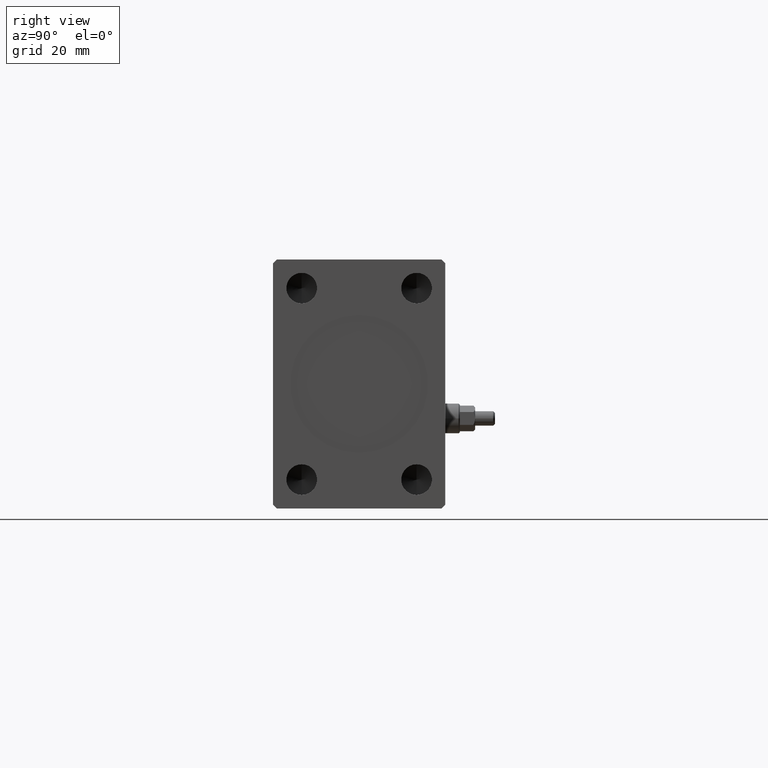
[diagram: clean part render]
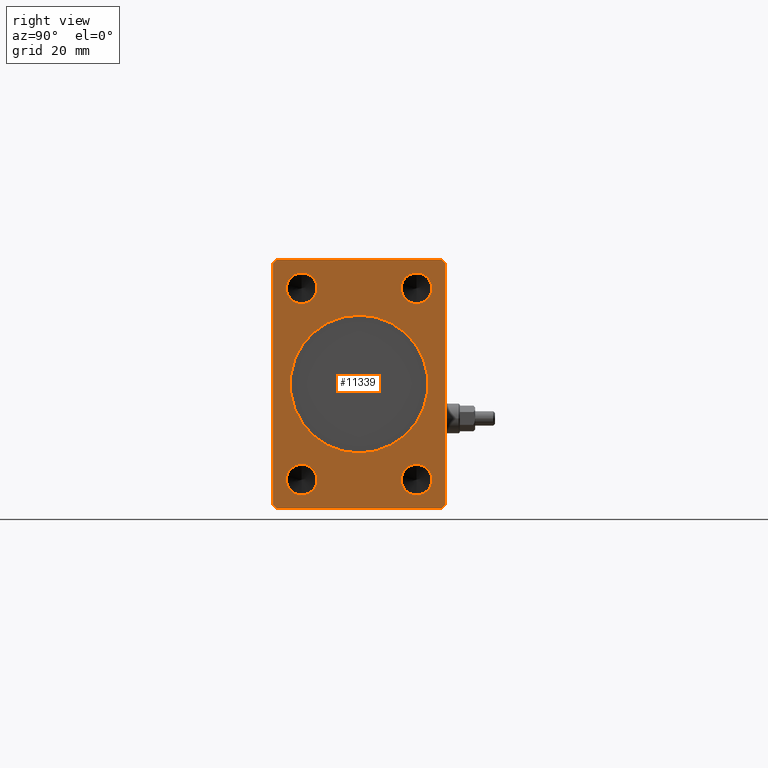
[diagram: same view with one face highlighted and labeled with its STEP entity id]
A machine part, right view. The second image highlights one B-rep face of the part: STEP entity #11339.
In plain terms, the highlighted planar face has unit normal (1, 0, 0).
Its self-contained STEP definition (entity closure, byte-faithful):
#311 = VERTEX_POINT ( 'NONE', #3911 ) ;
#345 = CARTESIAN_POINT ( 'NONE',  ( 163.0000000000000000, -22.50000000000001421, -31.50000000000000711 ) ) ;
#720 = EDGE_CURVE ( 'NONE', #18396, #18338, #2459, .T. ) ;
#809 = ORIENTED_EDGE ( 'NONE', *, *, #5262, .T. ) ;
#1256 = DIRECTION ( 'NONE',  ( 0.000000000000000000, 0.000000000000000000, -1.000000000000000000 ) ) ;
#1484 = LINE ( 'NONE', #4905, #3327 ) ;
#1647 = ORIENTED_EDGE ( 'NONE', *, *, #37509, .F. ) ;
#1685 = CARTESIAN_POINT ( 'NONE',  ( 163.0000000000000000, 0.000000000000000000, -18.00000000000000000 ) ) ;
#1808 = EDGE_CURVE ( 'NONE', #18338, #27748, #1484, .T. ) ;
#2355 = DIRECTION ( 'NONE',  ( 1.000000000000000000, 0.000000000000000000, 0.000000000000000000 ) ) ;
#2459 = LINE ( 'NONE', #12748, #36870 ) ;
#2478 = CARTESIAN_POINT ( 'NONE',  ( 163.0000000000000000, 21.49999999999999645, 32.50000000000000000 ) ) ;
#2627 = EDGE_CURVE ( 'NONE', #28308, #12404, #22952, .T. ) ;
#2684 = EDGE_CURVE ( 'NONE', #30100, #12191, #31007, .T. ) ;
#2991 = VECTOR ( 'NONE', #29241, 1000.000000000000114 ) ;
#3071 = FACE_BOUND ( 'NONE', #22101, .T. ) ;
#3327 = VECTOR ( 'NONE', #32790, 1000.000000000000114 ) ;
#3911 = CARTESIAN_POINT ( 'NONE',  ( 163.0000000000000000, -14.99999999999999645, 28.99999999999999645 ) ) ;
#4073 = CARTESIAN_POINT ( 'NONE',  ( 163.0000000000000000, 15.00000000000000355, -24.99999999999999289 ) ) ;
#4079 = AXIS2_PLACEMENT_3D ( 'NONE', #9475, #19769, #44432 ) ;
#4905 = CARTESIAN_POINT ( 'NONE',  ( 163.0000000000000000, 21.49999999999999645, -32.50000000000000000 ) ) ;
#4943 = CARTESIAN_POINT ( 'NONE',  ( 163.0000000000000000, -14.99999999999999645, -20.99999999999999645 ) ) ;
#5188 = ORIENTED_EDGE ( 'NONE', *, *, #27047, .T. ) ;
#5262 = EDGE_CURVE ( 'NONE', #15610, #10272, #22766, .T. ) ;
#5651 = DIRECTION ( 'NONE',  ( 0.000000000000000000, -0.7071067811865474617, -0.7071067811865474617 ) ) ;
#5994 = CARTESIAN_POINT ( 'NONE',  ( 163.0000000000000000, 15.00000000000000355, -28.99999999999999289 ) ) ;
#6243 = CARTESIAN_POINT ( 'NONE',  ( 163.0000000000000000, -14.99999999999999645, 20.99999999999999645 ) ) ;
#6437 = CIRCLE ( 'NONE', #44378, 4.000000000000000000 ) ;
#6553 = CARTESIAN_POINT ( 'NONE',  ( 163.0000000000000000, -14.99999999999999645, -24.99999999999999645 ) ) ;
#6573 = CARTESIAN_POINT ( 'NONE',  ( 163.0000000000000000, -14.99999999999999645, -24.99999999999999645 ) ) ;
#6651 = ORIENTED_EDGE ( 'NONE', *, *, #9985, .F. ) ;
#6793 = CARTESIAN_POINT ( 'NONE',  ( 163.0000000000000000, 2.204364238465235428E-15, 18.00000000000000000 ) ) ;
#6949 = FACE_BOUND ( 'NONE', #37080, .T. ) ;
#8785 = DIRECTION ( 'NONE',  ( 0.000000000000000000, 0.000000000000000000, 1.000000000000000000 ) ) ;
#8895 = LINE ( 'NONE', #33571, #25656 ) ;
#9094 = CIRCLE ( 'NONE', #34655, 4.000000000000000000 ) ;
#9317 = VECTOR ( 'NONE', #5651, 1000.000000000000114 ) ;
#9450 = AXIS2_PLACEMENT_3D ( 'NONE', #22656, #25181, #18330 ) ;
#9475 = CARTESIAN_POINT ( 'NONE',  ( 163.0000000000000000, 15.00000000000000355, 25.00000000000000000 ) ) ;
#9700 = ORIENTED_EDGE ( 'NONE', *, *, #30650, .F. ) ;
#9757 = DIRECTION ( 'NONE',  ( 1.000000000000000000, -0.000000000000000000, -0.000000000000000000 ) ) ;
#9829 = DIRECTION ( 'NONE',  ( 1.000000000000000000, 0.000000000000000000, 0.000000000000000000 ) ) ;
#9985 = EDGE_CURVE ( 'NONE', #12404, #28308, #21671, .T. ) ;
#10081 = ORIENTED_EDGE ( 'NONE', *, *, #29497, .T. ) ;
#10271 = CIRCLE ( 'NONE', #35808, 18.00000000000000000 ) ;
#10272 = VERTEX_POINT ( 'NONE', #39430 ) ;
#10630 = LINE ( 'NONE', #345, #26585 ) ;
#10818 = CIRCLE ( 'NONE', #34925, 4.000000000000000000 ) ;
#11036 = EDGE_CURVE ( 'NONE', #31354, #15610, #16621, .T. ) ;
#11339 = ADVANCED_FACE ( 'NONE', ( #19308, #29839, #6949, #28211, #3071, #20893 ), #14274, .T. ) ;
#11788 = CARTESIAN_POINT ( 'NONE',  ( 163.0000000000000000, -14.99999999999999645, 24.99999999999999645 ) ) ;
#12191 = VERTEX_POINT ( 'NONE', #37426 ) ;
#12352 = ORIENTED_EDGE ( 'NONE', *, *, #25723, .T. ) ;
#12404 = VERTEX_POINT ( 'NONE', #5994 ) ;
#12748 = CARTESIAN_POINT ( 'NONE',  ( 163.0000000000000000, -21.50000000000001776, -32.50000000000000711 ) ) ;
#13467 = DIRECTION ( 'NONE',  ( 0.000000000000000000, 0.000000000000000000, -1.000000000000000000 ) ) ;
#13479 = AXIS2_PLACEMENT_3D ( 'NONE', #6553, #9757, #31249 ) ;
#14274 = PLANE ( 'NONE',  #26841 ) ;
#14297 = DIRECTION ( 'NONE',  ( 0.000000000000000000, 0.7071067811865451302, -0.7071067811865500152 ) ) ;
#15135 = AXIS2_PLACEMENT_3D ( 'NONE', #4073, #18012, #13467 ) ;
#15610 = VERTEX_POINT ( 'NONE', #43940 ) ;
#15657 = ORIENTED_EDGE ( 'NONE', *, *, #11036, .T. ) ;
#15661 = CARTESIAN_POINT ( 'NONE',  ( 163.0000000000000000, 15.00000000000000355, -24.99999999999999289 ) ) ;
#15874 = ORIENTED_EDGE ( 'NONE', *, *, #23834, .F. ) ;
#16211 = DIRECTION ( 'NONE',  ( 0.000000000000000000, -1.000000000000000000, 0.000000000000000000 ) ) ;
#16521 = ORIENTED_EDGE ( 'NONE', *, *, #40638, .F. ) ;
#16621 = LINE ( 'NONE', #27349, #9317 ) ;
#17034 = VECTOR ( 'NONE', #8785, 1000.000000000000000 ) ;
#17866 = EDGE_LOOP ( 'NONE', ( #29988, #12352, #15657, #809, #10081, #41842, #29318, #5188 ) ) ;
#18012 = DIRECTION ( 'NONE',  ( 1.000000000000000000, -0.000000000000000000, -0.000000000000000000 ) ) ;
#18330 = DIRECTION ( 'NONE',  ( 0.000000000000000000, 0.000000000000000000, -1.000000000000000000 ) ) ;
#18338 = VERTEX_POINT ( 'NONE', #42154 ) ;
#18396 = VERTEX_POINT ( 'NONE', #23596 ) ;
#19308 = FACE_BOUND ( 'NONE', #40724, .T. ) ;
#19338 = DIRECTION ( 'NONE',  ( 0.000000000000000000, 5.507058653894625853E-17, -1.000000000000000000 ) ) ;
#19339 = EDGE_CURVE ( 'NONE', #12191, #30100, #39363, .T. ) ;
#19769 = DIRECTION ( 'NONE',  ( 1.000000000000000000, -0.000000000000000000, -0.000000000000000000 ) ) ;
#19941 = DIRECTION ( 'NONE',  ( 0.000000000000000000, 0.000000000000000000, -1.000000000000000000 ) ) ;
#20258 = CARTESIAN_POINT ( 'NONE',  ( 163.0000000000000000, 22.49999999999999645, -31.50000000000000000 ) ) ;
#20735 = CARTESIAN_POINT ( 'NONE',  ( 163.0000000000000000, 15.00000000000000355, -20.99999999999999289 ) ) ;
#20771 = ORIENTED_EDGE ( 'NONE', *, *, #2627, .F. ) ;
#20893 = FACE_OUTER_BOUND ( 'NONE', #17866, .T. ) ;
#21336 = DIRECTION ( 'NONE',  ( 0.000000000000000000, 0.000000000000000000, -1.000000000000000000 ) ) ;
#21671 = CIRCLE ( 'NONE', #15135, 4.000000000000000000 ) ;
#22101 = EDGE_LOOP ( 'NONE', ( #23471, #1647 ) ) ;
#22656 = CARTESIAN_POINT ( 'NONE',  ( 163.0000000000000000, 15.00000000000000355, 25.00000000000000000 ) ) ;
#22766 = LINE ( 'NONE', #36718, #36137 ) ;
#22952 = CIRCLE ( 'NONE', #31807, 4.000000000000000000 ) ;
#23471 = ORIENTED_EDGE ( 'NONE', *, *, #30916, .F. ) ;
#23596 = CARTESIAN_POINT ( 'NONE',  ( 163.0000000000000000, -21.50000000000001776, -32.50000000000000711 ) ) ;
#23773 = DIRECTION ( 'NONE',  ( 0.000000000000000000, 0.000000000000000000, -1.000000000000000000 ) ) ;
#23834 = EDGE_CURVE ( 'NONE', #37468, #44653, #10271, .T. ) ;
#24772 = CARTESIAN_POINT ( 'NONE',  ( 163.0000000000000000, 0.000000000000000000, 0.000000000000000000 ) ) ;
#25025 = EDGE_CURVE ( 'NONE', #43970, #41625, #30145, .T. ) ;
#25181 = DIRECTION ( 'NONE',  ( 1.000000000000000000, -0.000000000000000000, -0.000000000000000000 ) ) ;
#25656 = VECTOR ( 'NONE', #16211, 1000.000000000000000 ) ;
#25714 = DIRECTION ( 'NONE',  ( 1.000000000000000000, -0.000000000000000000, -0.000000000000000000 ) ) ;
#25723 = EDGE_CURVE ( 'NONE', #41625, #31354, #8895, .T. ) ;
#26157 = CARTESIAN_POINT ( 'NONE',  ( 163.0000000000000000, 22.49999999999999645, -31.50000000000000000 ) ) ;
#26392 = DIRECTION ( 'NONE',  ( 1.000000000000000000, -0.000000000000000000, -0.000000000000000000 ) ) ;
#26585 = VECTOR ( 'NONE', #14297, 1000.000000000000114 ) ;
#26802 = CARTESIAN_POINT ( 'NONE',  ( 163.0000000000000000, 0.000000000000000000, 0.000000000000000000 ) ) ;
#26841 = AXIS2_PLACEMENT_3D ( 'NONE', #24772, #31193, #21336 ) ;
#27047 = EDGE_CURVE ( 'NONE', #27748, #43970, #43288, .T. ) ;
#27349 = CARTESIAN_POINT ( 'NONE',  ( 163.0000000000000000, -21.50000000000001421, 32.50000000000000000 ) ) ;
#27748 = VERTEX_POINT ( 'NONE', #20258 ) ;
#28053 = DIRECTION ( 'NONE',  ( 1.000000000000000000, -0.000000000000000000, -0.000000000000000000 ) ) ;
#28211 = FACE_BOUND ( 'NONE', #45092, .T. ) ;
#28285 = DIRECTION ( 'NONE',  ( 0.000000000000000000, 0.000000000000000000, -1.000000000000000000 ) ) ;
#28308 = VERTEX_POINT ( 'NONE', #20735 ) ;
#28605 = CARTESIAN_POINT ( 'NONE',  ( 163.0000000000000000, -21.50000000000001421, 32.50000000000000000 ) ) ;
#28662 = VERTEX_POINT ( 'NONE', #32707 ) ;
#29241 = DIRECTION ( 'NONE',  ( 0.000000000000000000, -0.7071067811865474617, 0.7071067811865474617 ) ) ;
#29318 = ORIENTED_EDGE ( 'NONE', *, *, #1808, .T. ) ;
#29348 = DIRECTION ( 'NONE',  ( 1.000000000000000000, -0.000000000000000000, -0.000000000000000000 ) ) ;
#29497 = EDGE_CURVE ( 'NONE', #10272, #18396, #10630, .T. ) ;
#29839 = FACE_BOUND ( 'NONE', #42665, .T. ) ;
#29988 = ORIENTED_EDGE ( 'NONE', *, *, #25025, .T. ) ;
#30100 = VERTEX_POINT ( 'NONE', #32836 ) ;
#30145 = LINE ( 'NONE', #32887, #2991 ) ;
#30650 = EDGE_CURVE ( 'NONE', #28662, #41005, #39726, .T. ) ;
#30652 = CARTESIAN_POINT ( 'NONE',  ( 163.0000000000000000, 0.000000000000000000, 0.000000000000000000 ) ) ;
#30916 = EDGE_CURVE ( 'NONE', #33655, #311, #9094, .T. ) ;
#31007 = CIRCLE ( 'NONE', #4079, 4.000000000000000000 ) ;
#31193 = DIRECTION ( 'NONE',  ( 1.000000000000000000, 0.000000000000000000, 0.000000000000000000 ) ) ;
#31249 = DIRECTION ( 'NONE',  ( 0.000000000000000000, 0.000000000000000000, -1.000000000000000000 ) ) ;
#31354 = VERTEX_POINT ( 'NONE', #28605 ) ;
#31807 = AXIS2_PLACEMENT_3D ( 'NONE', #15661, #26392, #1256 ) ;
#32707 = CARTESIAN_POINT ( 'NONE',  ( 163.0000000000000000, -14.99999999999999645, -28.99999999999999645 ) ) ;
#32790 = DIRECTION ( 'NONE',  ( 0.000000000000000000, 0.7071067811865474617, 0.7071067811865474617 ) ) ;
#32836 = CARTESIAN_POINT ( 'NONE',  ( 163.0000000000000000, 15.00000000000000355, 29.00000000000000000 ) ) ;
#32887 = CARTESIAN_POINT ( 'NONE',  ( 163.0000000000000000, 22.49999999999999645, 31.50000000000000000 ) ) ;
#33571 = CARTESIAN_POINT ( 'NONE',  ( 163.0000000000000000, 21.49999999999999645, 32.50000000000000000 ) ) ;
#33655 = VERTEX_POINT ( 'NONE', #6243 ) ;
#34655 = AXIS2_PLACEMENT_3D ( 'NONE', #11788, #25714, #43530 ) ;
#34925 = AXIS2_PLACEMENT_3D ( 'NONE', #39627, #29348, #43500 ) ;
#34940 = ORIENTED_EDGE ( 'NONE', *, *, #2684, .F. ) ;
#35808 = AXIS2_PLACEMENT_3D ( 'NONE', #26802, #2355, #19941 ) ;
#36137 = VECTOR ( 'NONE', #19338, 1000.000000000000000 ) ;
#36400 = ORIENTED_EDGE ( 'NONE', *, *, #37355, .F. ) ;
#36463 = AXIS2_PLACEMENT_3D ( 'NONE', #30652, #9829, #23773 ) ;
#36624 = ORIENTED_EDGE ( 'NONE', *, *, #19339, .F. ) ;
#36718 = CARTESIAN_POINT ( 'NONE',  ( 163.0000000000000000, -22.50000000000001776, 31.50000000000000000 ) ) ;
#36870 = VECTOR ( 'NONE', #37201, 1000.000000000000000 ) ;
#37080 = EDGE_LOOP ( 'NONE', ( #9700, #36400 ) ) ;
#37201 = DIRECTION ( 'NONE',  ( 0.000000000000000000, 1.000000000000000000, 1.613696256722610912E-16 ) ) ;
#37355 = EDGE_CURVE ( 'NONE', #41005, #28662, #6437, .T. ) ;
#37426 = CARTESIAN_POINT ( 'NONE',  ( 163.0000000000000000, 15.00000000000000355, 21.00000000000000000 ) ) ;
#37468 = VERTEX_POINT ( 'NONE', #1685 ) ;
#37509 = EDGE_CURVE ( 'NONE', #311, #33655, #10818, .T. ) ;
#39363 = CIRCLE ( 'NONE', #9450, 4.000000000000000000 ) ;
#39430 = CARTESIAN_POINT ( 'NONE',  ( 163.0000000000000000, -22.50000000000001421, -31.50000000000000711 ) ) ;
#39627 = CARTESIAN_POINT ( 'NONE',  ( 163.0000000000000000, -14.99999999999999645, 24.99999999999999645 ) ) ;
#39726 = CIRCLE ( 'NONE', #13479, 4.000000000000000000 ) ;
#40638 = EDGE_CURVE ( 'NONE', #44653, #37468, #40858, .T. ) ;
#40724 = EDGE_LOOP ( 'NONE', ( #15874, #16521 ) ) ;
#40858 = CIRCLE ( 'NONE', #36463, 18.00000000000000000 ) ;
#41005 = VERTEX_POINT ( 'NONE', #4943 ) ;
#41625 = VERTEX_POINT ( 'NONE', #2478 ) ;
#41842 = ORIENTED_EDGE ( 'NONE', *, *, #720, .T. ) ;
#42154 = CARTESIAN_POINT ( 'NONE',  ( 163.0000000000000000, 21.49999999999999645, -32.50000000000000000 ) ) ;
#42665 = EDGE_LOOP ( 'NONE', ( #36624, #34940 ) ) ;
#43288 = LINE ( 'NONE', #26157, #17034 ) ;
#43500 = DIRECTION ( 'NONE',  ( 0.000000000000000000, 0.000000000000000000, -1.000000000000000000 ) ) ;
#43530 = DIRECTION ( 'NONE',  ( 0.000000000000000000, 0.000000000000000000, -1.000000000000000000 ) ) ;
#43940 = CARTESIAN_POINT ( 'NONE',  ( 163.0000000000000000, -22.50000000000001776, 31.50000000000000000 ) ) ;
#43970 = VERTEX_POINT ( 'NONE', #44485 ) ;
#44378 = AXIS2_PLACEMENT_3D ( 'NONE', #6573, #28053, #28285 ) ;
#44432 = DIRECTION ( 'NONE',  ( 0.000000000000000000, 0.000000000000000000, -1.000000000000000000 ) ) ;
#44485 = CARTESIAN_POINT ( 'NONE',  ( 163.0000000000000000, 22.49999999999999645, 31.50000000000000000 ) ) ;
#44653 = VERTEX_POINT ( 'NONE', #6793 ) ;
#45092 = EDGE_LOOP ( 'NONE', ( #6651, #20771 ) ) ;